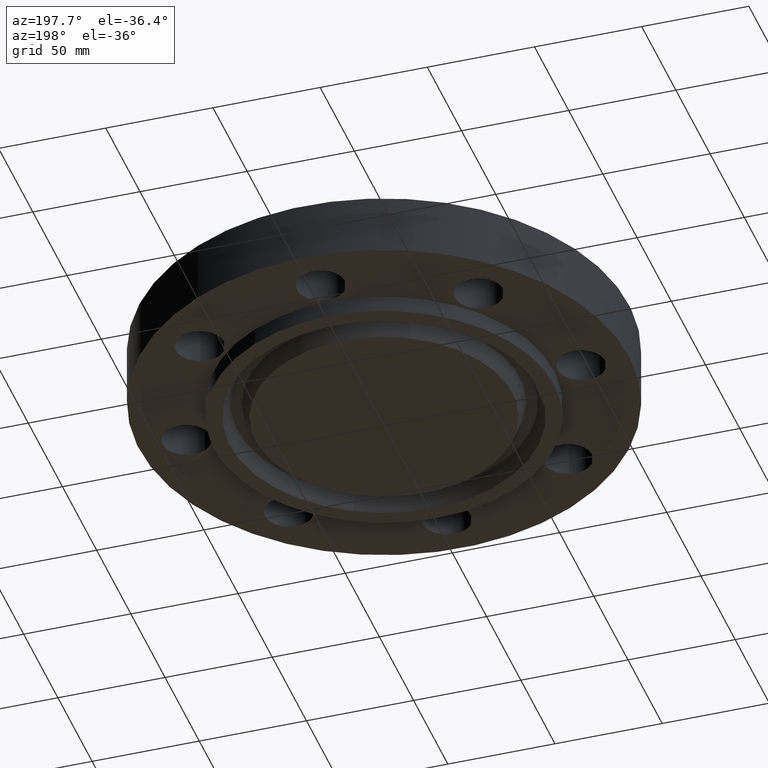
[diagram: clean part render]
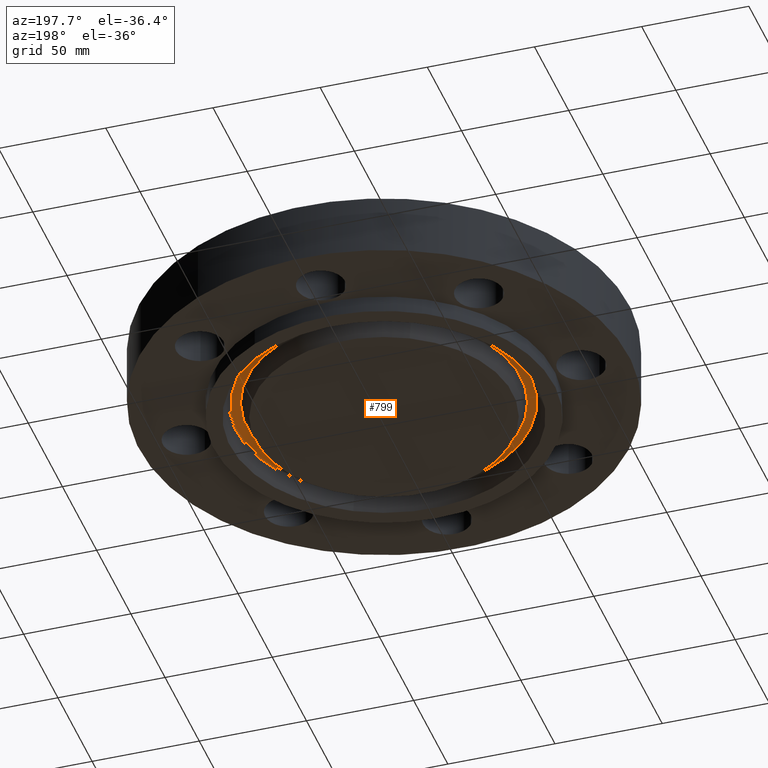
[diagram: same view with one face highlighted and labeled with its STEP entity id]
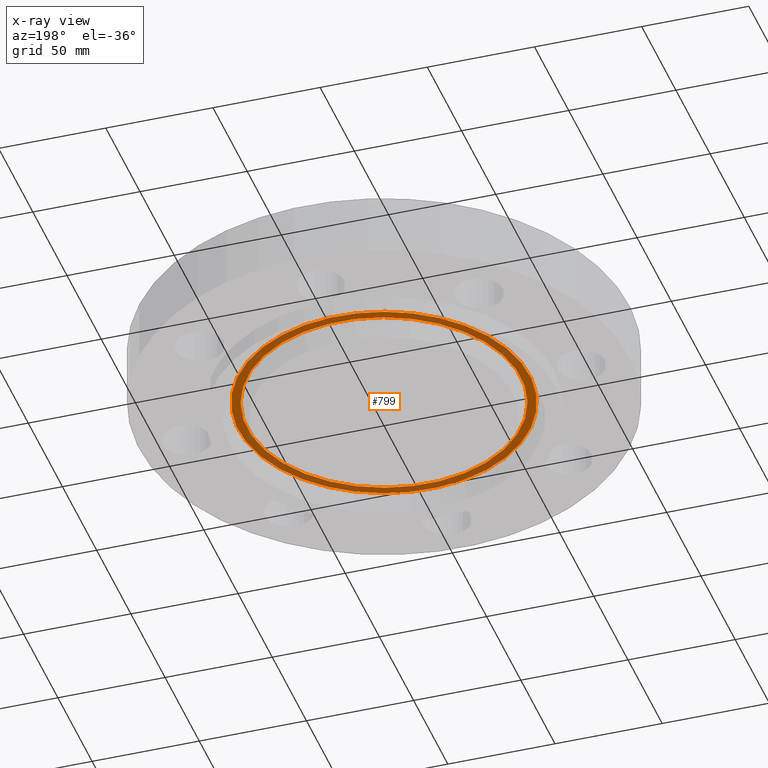
[diagram: x-ray of the same camera — body ghosted, the highlighted face saturated]
A machine part, auxiliary view. The second image highlights one B-rep face of the part: STEP entity #799.
The next image is the same camera in x-ray: the body ghosted, the highlighted face saturated — about 0% of this face is hidden behind the body in this view.
In plain terms, the highlighted planar face has unit normal (0, 0, -1).
Its self-contained STEP definition (entity closure, byte-faithful):
#498=AXIS2_PLACEMENT_3D('Plane Axis2P3D',#495,#496,#497) ;
#721=AXIS2_PLACEMENT_3D('Circle Axis2P3D',#719,#720,$) ;
#767=AXIS2_PLACEMENT_3D('Circle Axis2P3D',#765,#766,$) ;
#783=AXIS2_PLACEMENT_3D('Circle Axis2P3D',#781,#782,$) ;
#792=AXIS2_PLACEMENT_3D('Circle Axis2P3D',#790,#791,$) ;
#495=CARTESIAN_POINT('Axis2P3D Location',(0.,3.12500000001,0.)) ;
#716=CARTESIAN_POINT('Vertex',(-1.28236004841,2.34734432342,-1.57354444435E-016)) ;
#719=CARTESIAN_POINT('Axis2P3D Location',(0.,0.,-1.57354444435E-016)) ;
#723=CARTESIAN_POINT('Vertex',(1.28236004841,-2.34734432342,-1.57354444435E-016)) ;
#765=CARTESIAN_POINT('Axis2P3D Location',(0.,0.,-1.57354444435E-016)) ;
#781=CARTESIAN_POINT('Axis2P3D Location',(0.,0.,0.)) ;
#785=CARTESIAN_POINT('Vertex',(1.20465993311,-2.2051152164,1.31128703696E-016)) ;
#787=CARTESIAN_POINT('Vertex',(-1.20465993311,2.2051152164,1.31128703696E-016)) ;
#790=CARTESIAN_POINT('Axis2P3D Location',(0.,0.,0.)) ;
#496=DIRECTION('Axis2P3D Direction',(0.,0.,-0.0393700787402)) ;
#497=DIRECTION('Axis2P3D XDirection',(0.0393700787402,0.,0.)) ;
#720=DIRECTION('Axis2P3D Direction',(0.,0.,0.0393700787402)) ;
#766=DIRECTION('Axis2P3D Direction',(0.,0.,0.0393700787402)) ;
#782=DIRECTION('Axis2P3D Direction',(0.,0.,-0.0393700787402)) ;
#791=DIRECTION('Axis2P3D Direction',(0.,0.,-0.0393700787402)) ;
#778=ORIENTED_EDGE('',*,*,#725,.F.) ;
#779=ORIENTED_EDGE('',*,*,#769,.F.) ;
#796=ORIENTED_EDGE('',*,*,#789,.T.) ;
#797=ORIENTED_EDGE('',*,*,#794,.T.) ;
#798=FACE_BOUND('',#795,.T.) ;
#799=ADVANCED_FACE('PartBody',(#780,#798),#499,.T.) ;
#722=CIRCLE('generated circle',#721,2.67478460188) ;
#768=CIRCLE('generated circle',#767,2.67478460188) ;
#784=CIRCLE('generated circle',#783,2.51271539814) ;
#793=CIRCLE('generated circle',#792,2.51271539814) ;
#725=EDGE_CURVE('',#717,#724,#722,.T.) ;
#769=EDGE_CURVE('',#724,#717,#768,.T.) ;
#789=EDGE_CURVE('',#786,#788,#784,.F.) ;
#794=EDGE_CURVE('',#788,#786,#793,.F.) ;
#777=EDGE_LOOP('',(#778,#779)) ;
#795=EDGE_LOOP('',(#796,#797)) ;
#780=FACE_OUTER_BOUND('',#777,.T.) ;
#499=PLANE('',#498) ;
#717=VERTEX_POINT('',#716) ;
#724=VERTEX_POINT('',#723) ;
#786=VERTEX_POINT('',#785) ;
#788=VERTEX_POINT('',#787) ;